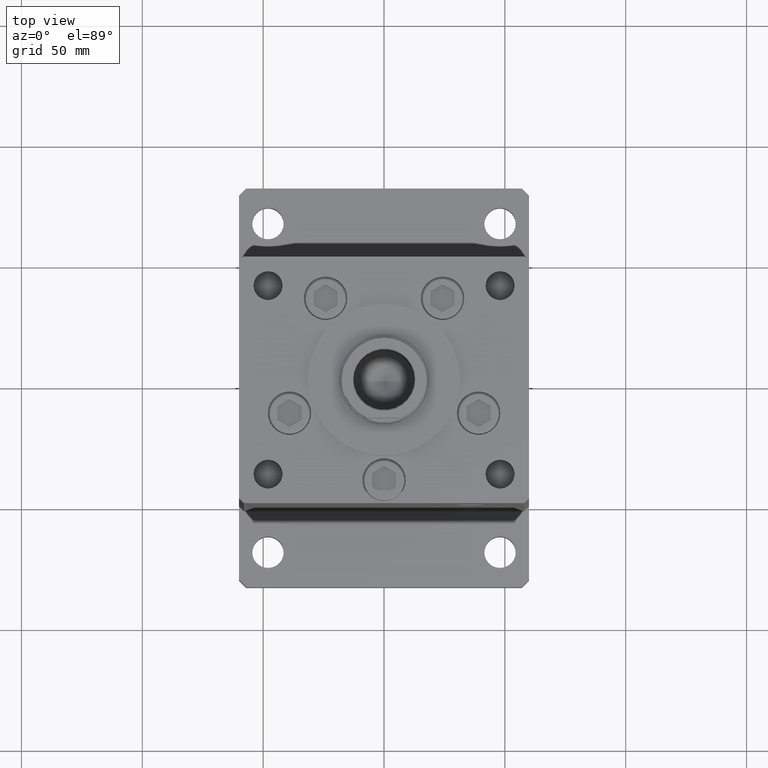
[diagram: clean part render]
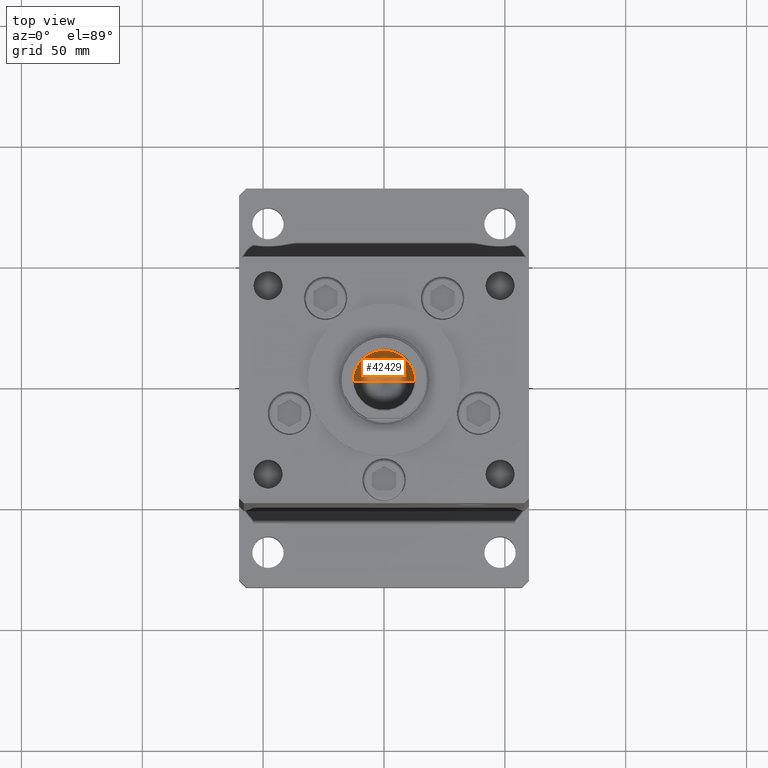
[diagram: same view with one face highlighted and labeled with its STEP entity id]
A machine part, top view. The second image highlights one B-rep face of the part: STEP entity #42429.
In plain terms, the highlighted conical surface has half-angle 59 deg.
Its self-contained STEP definition (entity closure, byte-faithful):
#2520 = ORIENTED_EDGE ( 'NONE', *, *, #9776, .F. ) ;
#3019 = VECTOR ( 'NONE', #47835, 1000.000000000000000 ) ;
#5148 = CARTESIAN_POINT ( 'NONE',  ( -12.74999999999999112, 1.561424668912874125E-15, 124.2500000000000142 ) ) ;
#8910 = ORIENTED_EDGE ( 'NONE', *, *, #46306, .T. ) ;
#9776 = EDGE_CURVE ( 'NONE', #16823, #49157, #10661, .T. ) ;
#10661 = LINE ( 'NONE', #52686, #3019 ) ;
#13696 = CARTESIAN_POINT ( 'NONE',  ( 12.74999999999999112, 0.000000000000000000, 124.2500000000000142 ) ) ;
#16823 = VERTEX_POINT ( 'NONE', #41227 ) ;
#23689 = DIRECTION ( 'NONE',  ( 1.000000000000000000, 0.000000000000000000, 0.000000000000000000 ) ) ;
#24145 = AXIS2_PLACEMENT_3D ( 'NONE', #28590, #41057, #23689 ) ;
#27047 = DIRECTION ( 'NONE',  ( -0.000000000000000000, -0.000000000000000000, 1.000000000000000000 ) ) ;
#27128 = EDGE_LOOP ( 'NONE', ( #2520, #46438, #8910 ) ) ;
#28590 = CARTESIAN_POINT ( 'NONE',  ( 0.000000000000000000, 0.000000000000000000, 124.2500000000000142 ) ) ;
#30396 = CIRCLE ( 'NONE', #33841, 12.74999999999999112 ) ;
#32650 = FACE_OUTER_BOUND ( 'NONE', #27128, .T. ) ;
#33841 = AXIS2_PLACEMENT_3D ( 'NONE', #43332, #27047, #38990 ) ;
#35181 = LINE ( 'NONE', #36999, #36310 ) ;
#35648 = VERTEX_POINT ( 'NONE', #13696 ) ;
#36310 = VECTOR ( 'NONE', #49472, 1000.000000000000000 ) ;
#36999 = CARTESIAN_POINT ( 'NONE',  ( 12.74999999999999112, 0.000000000000000000, 124.2500000000000142 ) ) ;
#38990 = DIRECTION ( 'NONE',  ( 1.000000000000000000, 0.000000000000000000, 0.000000000000000000 ) ) ;
#41057 = DIRECTION ( 'NONE',  ( -0.000000000000000000, -0.000000000000000000, 1.000000000000000000 ) ) ;
#41227 = CARTESIAN_POINT ( 'NONE',  ( -1.307202896762960287E-14, 0.000000000000000000, 116.5890271073986213 ) ) ;
#42429 = ADVANCED_FACE ( 'NONE', ( #32650 ), #47553, .F. ) ;
#43332 = CARTESIAN_POINT ( 'NONE',  ( 0.000000000000000000, 0.000000000000000000, 124.2500000000000142 ) ) ;
#43424 = EDGE_CURVE ( 'NONE', #16823, #35648, #35181, .T. ) ;
#46306 = EDGE_CURVE ( 'NONE', #35648, #49157, #30396, .T. ) ;
#46438 = ORIENTED_EDGE ( 'NONE', *, *, #43424, .T. ) ;
#47553 = CONICAL_SURFACE ( 'NONE', #24145, 12.74999999999999112, 1.029744258676653423 ) ;
#47835 = DIRECTION ( 'NONE',  ( -0.8571673007021117785, 1.049727191138617956E-16, 0.5150380749100550437 ) ) ;
#49157 = VERTEX_POINT ( 'NONE', #5148 ) ;
#49472 = DIRECTION ( 'NONE',  ( 0.8571673007021117785, 0.000000000000000000, 0.5150380749100550437 ) ) ;
#52686 = CARTESIAN_POINT ( 'NONE',  ( -12.74999999999999112, 1.561424668912874125E-15, 124.2500000000000142 ) ) ;